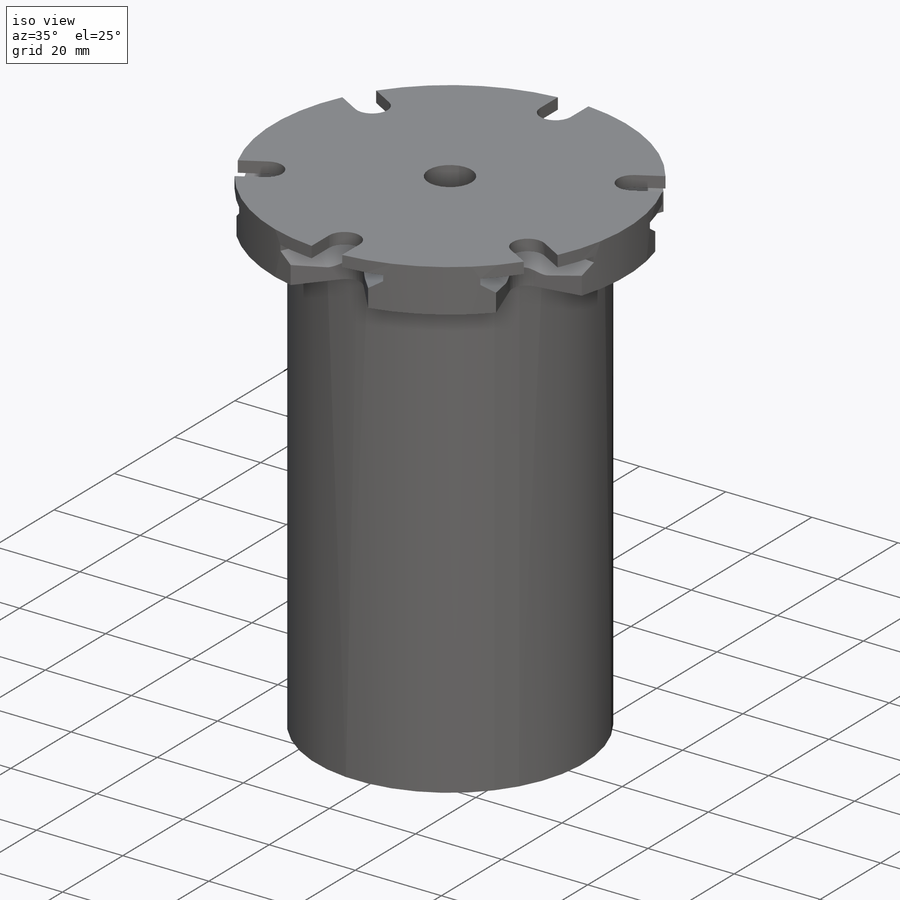
[diagram: iso view]
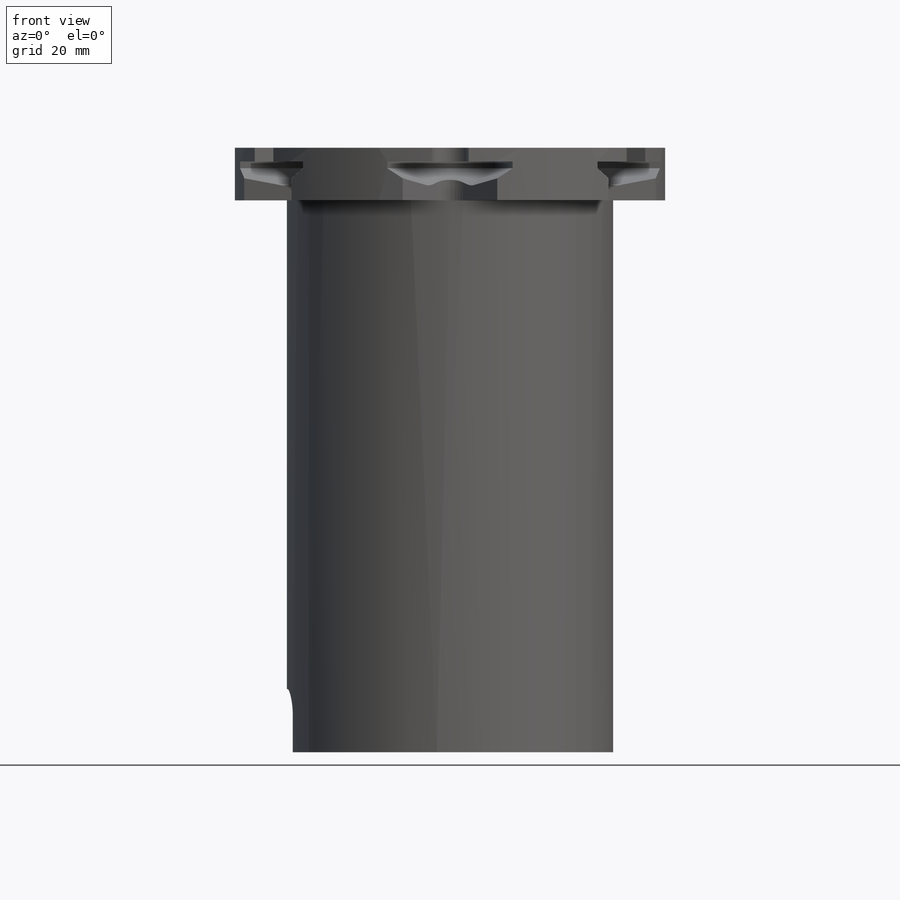
[diagram: front view]
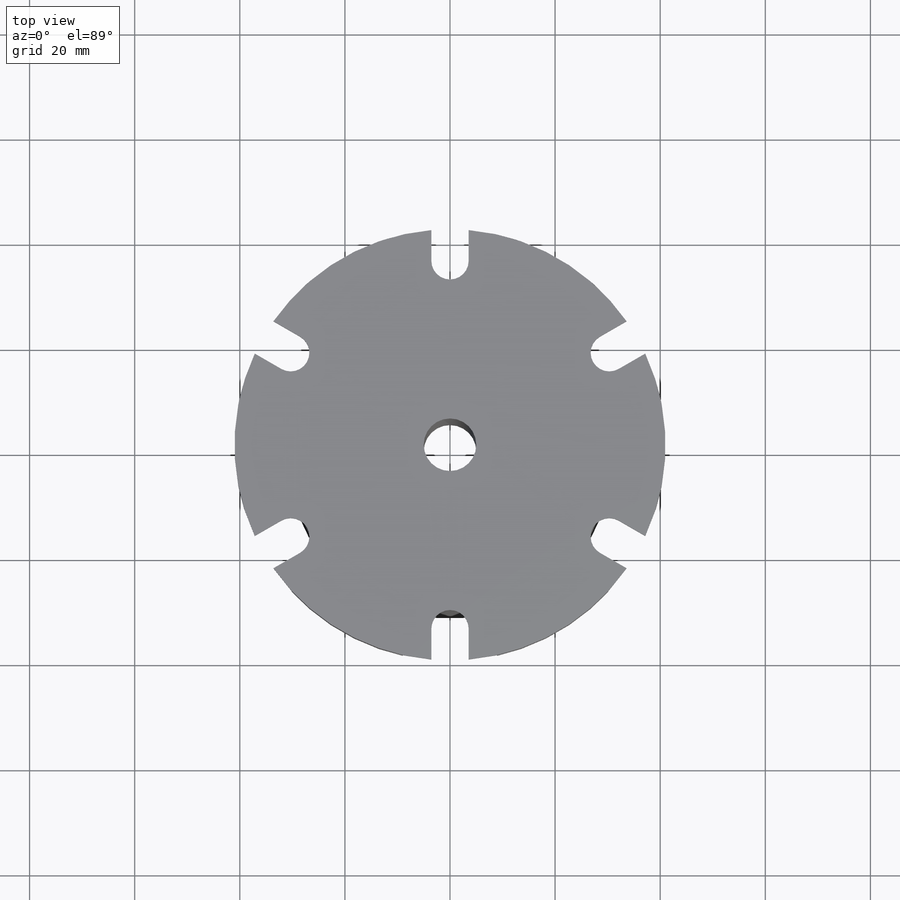
[diagram: top view]
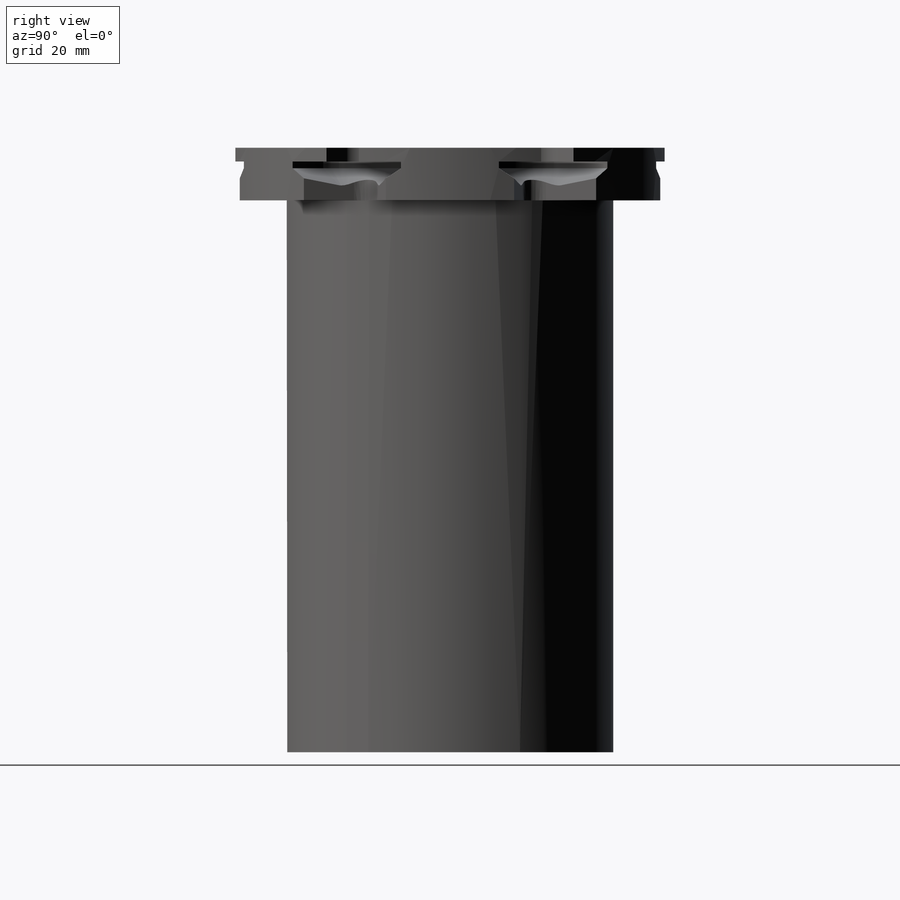
[diagram: right view]
SOLIDWORKS PART (.sldprt)
format: sldprt  version: not decoded by parser v0  size: 605,696 bytes
history: native  units: mm
features: sketch x14, cut_extrude x9, pattern_circular x3, extrude x2, plane x2, fillet x2, material x1, sweep x1 (+12 scaffold rows collapsed)
feature tree (46):
  scaffold x12  (default folders/planes/origin — collapsed)
  material  "Material <not specified>"
  sketch  "Sketch1"  dims[c1.D3=82.0mm c1.D1=~29.731026mm c1.D2=~31.880256mm c2.D1=42.5mm c2.D2=42.5mm]
  extrude  "Boss-Extrude1"  Depth=40mm
  sketch  "Sketch2"  dims[D1=5.0mm]
  extrude  "Boss-Extrude2"  Depth=75mm
  sketch  "Sketch3"  dims[D1=24.0mm]
  cut_extrude  "Cut-Extrude1"  Depth=2mm
  sketch  "Sketch4"  dims[D1=10.0mm]
  cut_extrude  "Cut-Extrude2"  [1 undecoded]
  sketch  "Sketch6"  dims[c1.D1=~16.74003mm c1.D2=~9.103634mm c2.D1=13.0mm c2.D2=17.0mm c2.D3=21.175mm]
  cut_extrude  "Cut-Extrude4"  Depth=12mm
  plane  "Plane1"
  sketch  "Sketch8"  dims[D2=~9.567476mm D1=0.0mm]
  cut_extrude  "Cut-Extrude5"  Depth=2mm
  sketch  "Sketch10"  dims[c1.D1=5.8mm c1.D3=49.0mm c2.D1=37.5mm c2.D2=~6.097427mm c2.D3=7.0mm c2.D4=16.5mm c2.D5=~3.946026mm c3.D3=6.25mm c3.D5=~16.590914mm c3.D6=2.0mm c3.D2=0.0mm c4.D5=2.0mm]
  sketch  "Sketch11"  dims[c1.D2=15.4mm c1.D3=11.1mm c1.D4=18.4mm c1.D5=~5.07525mm c2.D4=18.4mm c2.D2=5.55mm c2.D3=15.4mm c2.D5=~26.427007mm c3.D4=~21.754371mm c3.D1=0.0mm]
  plane  "Plane2"
  sketch  "Sketch12"
  sweep  "Cut-Sweep8"
  cut_extrude  "Cut-Extrude8"  [1 undecoded]
  sketch  "Sketch12<4>"  dims[D1=10.0mm]
  sketch  "Sketch13"  dims[D2=1.7mm D3=~1.909091mm D1=0.0mm]
  cut_extrude  "Cut-Extrude9"  Depth=10mm
  pattern_circular  "CirPattern2"  Count=6 Angle=60deg
  sketch  "Sketch15"  dims[c1.D2=62.12mm c1.D3=57.0mm c1.D1=62.12mm c2.D2=9.94mm c2.D1=2.56mm]
  cut_extrude  "Cut-Extrude11"  Depth=105mm
  sketch  "Sketch16"  dims[c1.D2=41.0mm c1.D3=3.25mm c2.D2=18.0mm c2.D4=~4.157828mm c3.D2=~13.015941mm c3.D1=0.0mm c4.D2=0.0mm c4.D3=0.0mm c5.D2=0.0mm]
  cut_extrude  "Cut-Extrude12"  Depth=7.4mm
  pattern_circular  "CirPattern3"  Count=6 Angle=60deg
  fillet  "Fillet1"  Radius=5mm
  fillet  "Fillet2"  Radius=5mm
  sketch  "Sketch17"  dims[c1.D1=7.1mm c1.D3=82.0mm c2.D1=~17.886255mm c2.D2=6.0mm]
  cut_extrude  "Cut-Extrude13"  Depth=5mm
  pattern_circular  "CirPattern4"  Count=6 Angle=60deg
decode coverage: 27 of 31 modeling features carry decoded parameters
note: ~ marks probable driven/reference dimensions
note: 2 parameter values undecoded
note: suppression state not decoded; provenance and decode notes live in map.json
